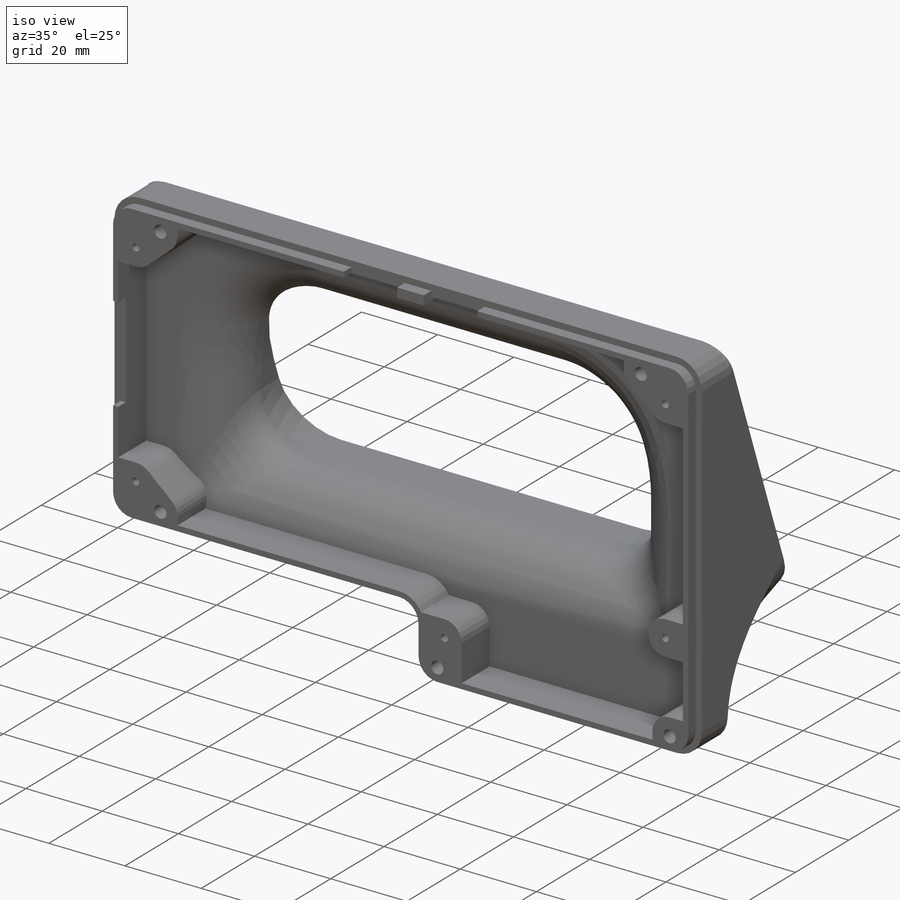
[diagram: iso view]
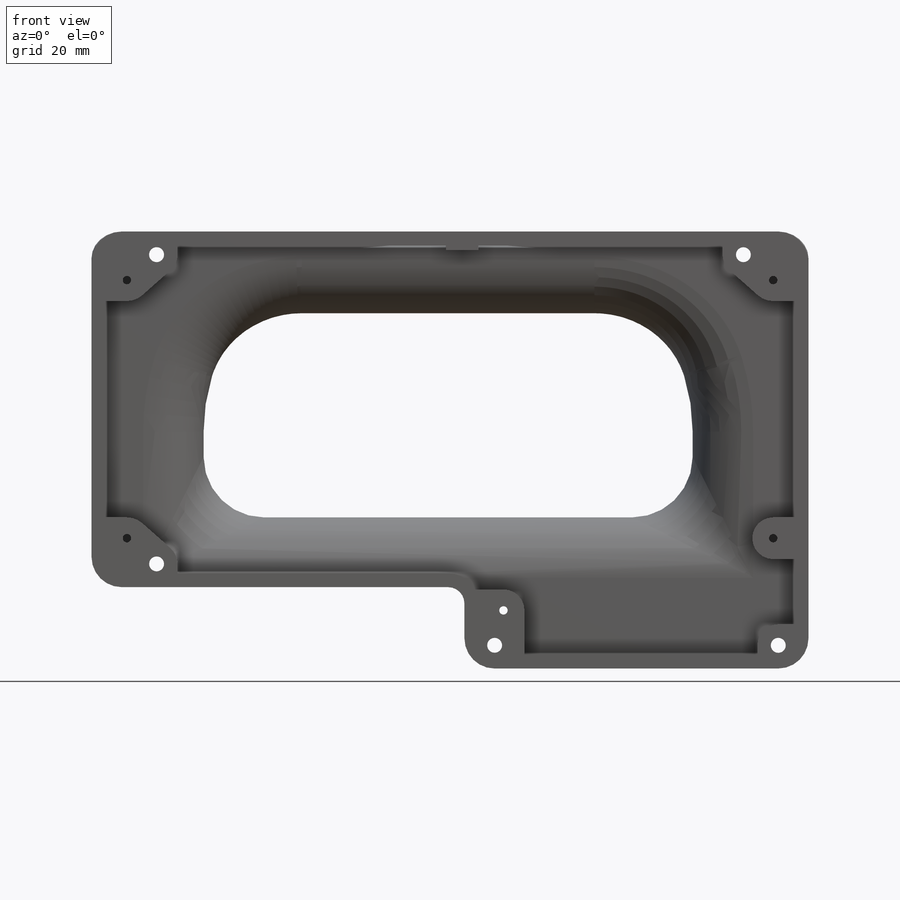
[diagram: front view]
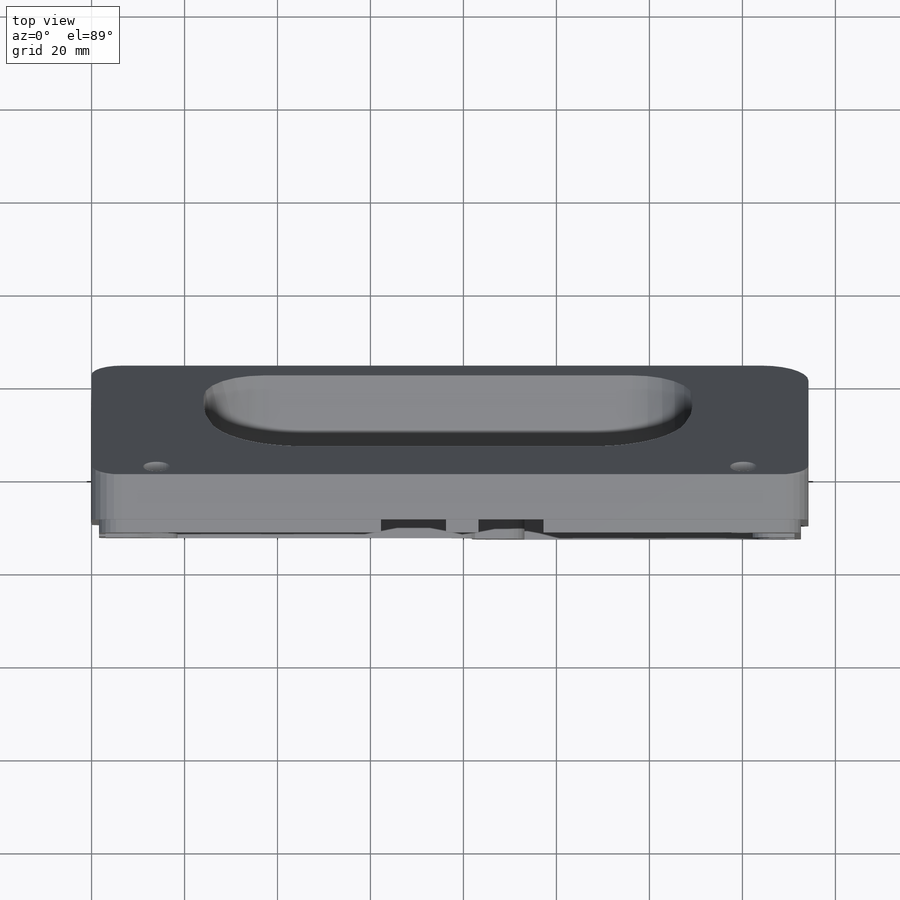
[diagram: top view]
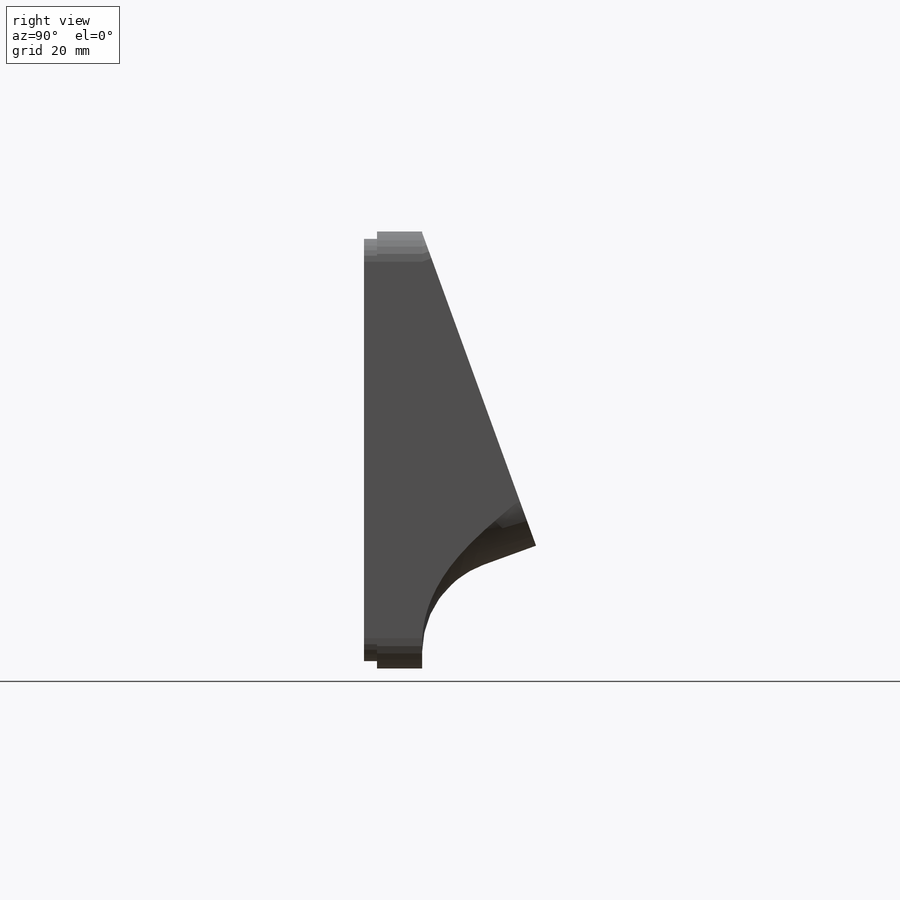
[diagram: right view]
SOLIDWORKS PART (.sldprt)
format: sldprt  version: not decoded by parser v0  size: 1,547,264 bytes
history: native  units: mm
features: sketch x33, cut_extrude x25, material x7, extrude x6, fillet x5, plane x1 (+9 scaffold rows collapsed)
feature tree (86):
  scaffold x9  (default folders/planes/origin — collapsed)
  material  "Materiale <non specificato>"
  material  "Piano superiore"
  material  "Piano destro"
  material  "Piano1"
  material  "Piano2"
  material  "Piano3"
  material  "Piano4"
  plane  "Piano frontale"
  sketch  "Schizzo1"
  extrude  "Estrusione-Estrusione1"  Depth=9.7mm
  sketch  "Schizzo2"
  extrude  "Estrusione-Estrusione2"  Depth=2.8mm
  sketch  "Schizzo3"
  extrude  "Estrusione-Estrusione3"  Depth=2.8mm
  sketch  "Schizzo4"
  cut_extrude  "Taglio-Estrusione1"  Depth=7.7mm
  sketch  "Schizzo5"
  extrude  "Estrusione-Estrusione4"  Depth=10.5mm
  sketch  "Schizzo6"
  cut_extrude  "Taglio-Estrusione2"  Depth=9.5mm
  sketch  "Schizzo7"
  cut_extrude  "Taglio-Estrusione3"  Depth=3mm
  sketch  "Schizzo8"
  cut_extrude  "Taglio-Estrusione4"  Depth=8.5mm
  sketch  "Schizzo9"
  cut_extrude  "Taglio-Estrusione5"  Depth=4mm
  sketch  "Schizzo10"
  cut_extrude  "Taglio-Estrusione6"  Depth=9.5mm
  sketch  "Schizzo11"
  cut_extrude  "Taglio-Estrusione7"  Depth=3mm
  sketch  "Schizzo12"
  cut_extrude  "Taglio-Estrusione8"  Depth=8.5mm
  sketch  "Schizzo13"
  cut_extrude  "Taglio-Estrusione9"  Depth=4mm
  sketch  "Schizzo14"
  cut_extrude  "Taglio-Estrusione10"  Depth=9.5mm
  sketch  "Schizzo15"
  cut_extrude  "Taglio-Estrusione11"  Depth=3mm
  sketch  "Schizzo16"
  cut_extrude  "Taglio-Estrusione12"  Depth=8.5mm
  sketch  "Schizzo17"
  cut_extrude  "Taglio-Estrusione13"  Depth=4mm
  sketch  "Schizzo18"
  cut_extrude  "Taglio-Estrusione14"  Depth=8.5mm
  sketch  "Schizzo19"
  cut_extrude  "Taglio-Estrusione15"  Depth=4mm
  sketch  "Schizzo20"
  cut_extrude  "Taglio-Estrusione16"  Depth=9.5mm
  sketch  "Schizzo21"
  cut_extrude  "Taglio-Estrusione17"  Depth=3mm
  sketch  "Schizzo22"
  cut_extrude  "Taglio-Estrusione18"  Depth=9.5mm
  sketch  "Schizzo23"
  cut_extrude  "Taglio-Estrusione19"  Depth=3mm
  sketch  "Schizzo24"
  cut_extrude  "Taglio-Estrusione20"  Depth=8.5mm
  sketch  "Schizzo25"
  cut_extrude  "Taglio-Estrusione21"  Depth=4mm
  sketch  "Schizzo26"  dims[D1=7.0mm]
  sketch  "Schizzo28"
  cut_extrude  "Taglio-Estrusione22"  Depth=10mm
  sketch  "Schizzo29"
  sketch  "Schizzo30"  dims[c1.D2=10.0mm c1.D1=0.0mm c2.D2=30.0mm c2.D3=30.0mm]
  extrude  "Estrusione-Estrusione5"  [1 undecoded]
  sketch  "Schizzo31"
  cut_extrude  "Taglio-Estrusione23"  Depth=70mm
  sketch  "Schizzo33"
  cut_extrude  "Taglio-Estrusione24"  Depth=70mm
  fillet  "Raccordo1"  Radius=20mm
  sketch  "Schizzo36"  dims[D1=5.0mm]
  cut_extrude  "Taglio-Estrusione25"  [1 undecoded]
  fillet  "Raccordo4"  Radius=40mm
  sketch  "Schizzo39"  dims[D1=~16.056512mm]
  extrude  "Estrusione-Estrusione7"  [1 undecoded]
  fillet  "Raccordo5"  Radius=20mm
  fillet  "Raccordo6"  Radius=13mm
  fillet  "Raccordo7"  Radius=13mm
decode coverage: 37 of 69 modeling features carry decoded parameters
note: ~ marks probable driven/reference dimensions
note: 3 parameter values undecoded
summary: no parameter record found for 3 features
note: suppression state not decoded; provenance and decode notes live in map.json
